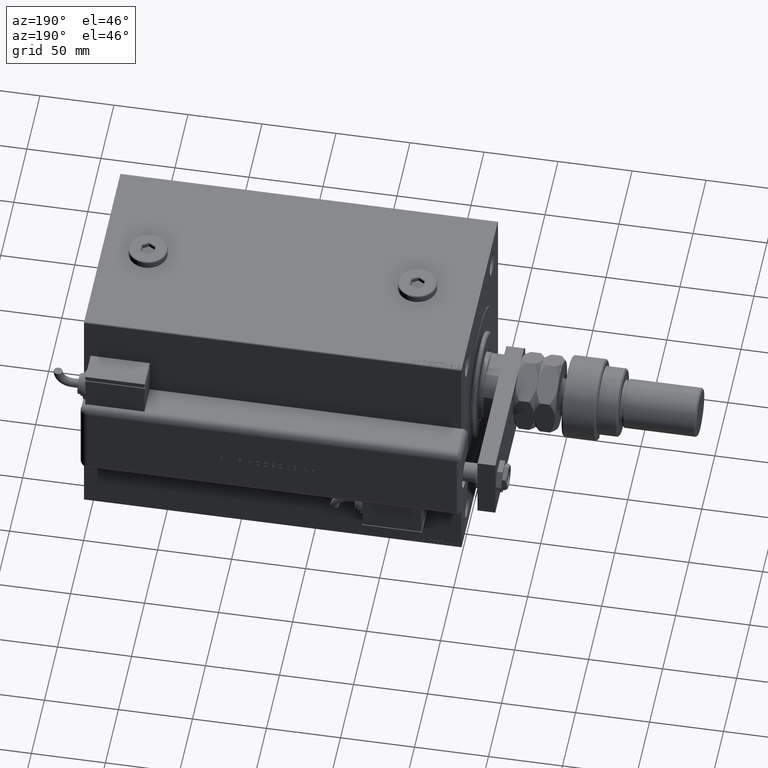
[diagram: clean part render]
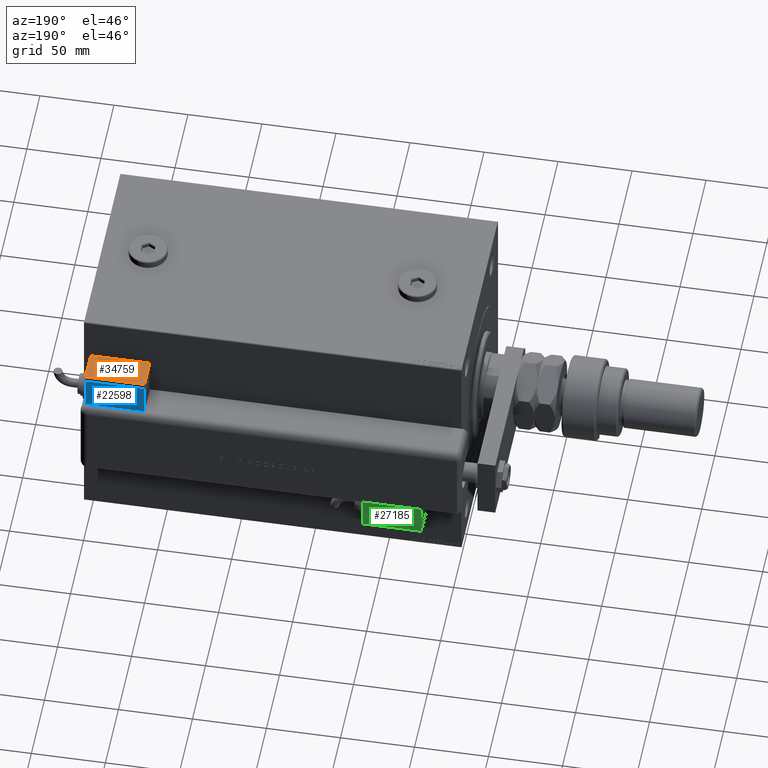
[diagram: same view with three faces highlighted in distinct colors, each labeled with its STEP entity id]
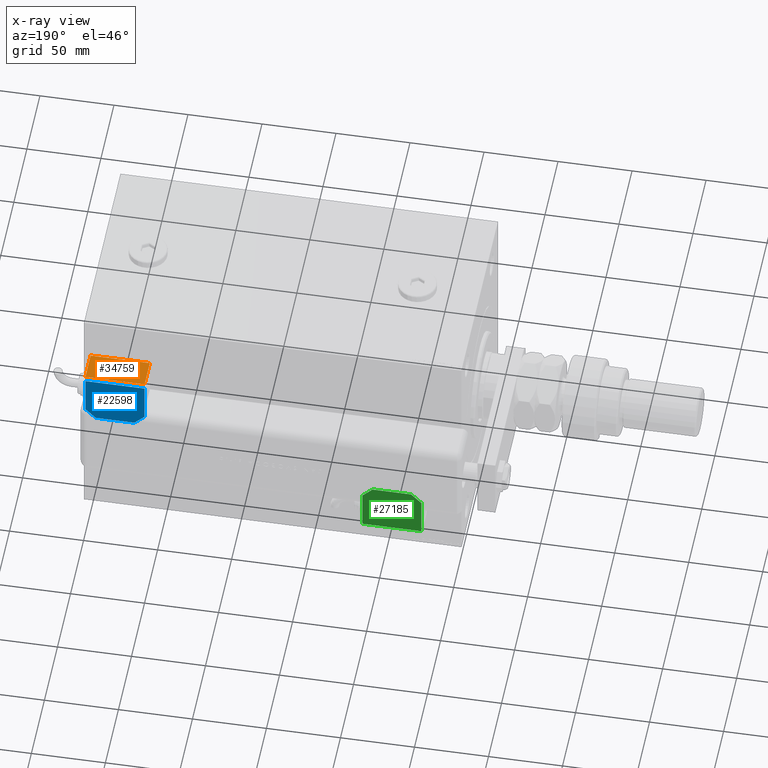
[diagram: x-ray of the same camera — body ghosted, the three highlighted faces saturated]
A machine part, auxiliary view with three faces highlighted in distinct colors.
The next image is the same camera in x-ray (body ghosted, the three faces saturated) — at least one of them is partly hidden behind the body in this view.
Their STEP definitions:

[orange] entity #34759 — the highlighted planar face has unit normal (-0, -0, -1).
#1926 = FACE_OUTER_BOUND ( 'NONE', #43758, .T. ) ;
#9948 = EDGE_CURVE ( 'NONE', #40380, #53001, #50478, .T. ) ;
#11420 = CARTESIAN_POINT ( 'NONE',  ( 20.00000000000005329, -17.49999999999996092, -9.999999999999998224 ) ) ;
#14231 = VERTEX_POINT ( 'NONE', #32868 ) ;
#14843 = VECTOR ( 'NONE', #53596, 1000.000000000000000 ) ;
#17223 = ORIENTED_EDGE ( 'NONE', *, *, #44770, .T. ) ;
#21776 = CARTESIAN_POINT ( 'NONE',  ( 0.000000000000000000, -17.49999999999996092, 0.000000000000000000 ) ) ;
#22006 = CARTESIAN_POINT ( 'NONE',  ( -19.99999999999994316, -17.49999999999996092, -9.999999999999998224 ) ) ;
#23265 = DIRECTION ( 'NONE',  ( -0.000000000000000000, -0.000000000000000000, -1.000000000000000000 ) ) ;
#25342 = VECTOR ( 'NONE', #39763, 1000.000000000000000 ) ;
#25346 = LINE ( 'NONE', #22006, #60466 ) ;
#27732 = CARTESIAN_POINT ( 'NONE',  ( 20.00000000000005329, -17.49999999999996092, 10.00000000000000000 ) ) ;
#28869 = ORIENTED_EDGE ( 'NONE', *, *, #9948, .T. ) ;
#29178 = LINE ( 'NONE', #34066, #14843 ) ;
#32614 = EDGE_CURVE ( 'NONE', #38119, #14231, #37255, .T. ) ;
#32868 = CARTESIAN_POINT ( 'NONE',  ( -19.99999999999994316, -17.49999999999996092, -9.999999999999998224 ) ) ;
#34066 = CARTESIAN_POINT ( 'NONE',  ( -19.99999999999994316, -17.49999999999996092, 10.00000000000000000 ) ) ;
#34443 = ORIENTED_EDGE ( 'NONE', *, *, #32614, .T. ) ;
#34759 = ADVANCED_FACE ( 'NONE', ( #1926 ), #60201, .F. ) ;
#37255 = LINE ( 'NONE', #37896, #52882 ) ;
#37896 = CARTESIAN_POINT ( 'NONE',  ( -19.99999999999994316, -17.49999999999996092, -9.999999999999998224 ) ) ;
#38119 = VERTEX_POINT ( 'NONE', #49750 ) ;
#39318 = EDGE_CURVE ( 'NONE', #14231, #40380, #25346, .T. ) ;
#39763 = DIRECTION ( 'NONE',  ( 0.000000000000000000, 0.000000000000000000, 1.000000000000000000 ) ) ;
#40380 = VERTEX_POINT ( 'NONE', #51298 ) ;
#41611 = DIRECTION ( 'NONE',  ( 0.000000000000000000, 1.000000000000000000, 0.000000000000000000 ) ) ;
#43758 = EDGE_LOOP ( 'NONE', ( #28869, #17223, #34443, #55944 ) ) ;
#44770 = EDGE_CURVE ( 'NONE', #53001, #38119, #29178, .T. ) ;
#45196 = DIRECTION ( 'NONE',  ( 1.000000000000000000, 0.000000000000000000, 0.000000000000000000 ) ) ;
#49750 = CARTESIAN_POINT ( 'NONE',  ( -19.99999999999994316, -17.49999999999996092, 10.00000000000000000 ) ) ;
#50478 = LINE ( 'NONE', #11420, #25342 ) ;
#51298 = CARTESIAN_POINT ( 'NONE',  ( 20.00000000000005329, -17.49999999999996092, -9.999999999999998224 ) ) ;
#52882 = VECTOR ( 'NONE', #23265, 1000.000000000000000 ) ;
#52976 = AXIS2_PLACEMENT_3D ( 'NONE', #21776, #41611, #61494 ) ;
#53001 = VERTEX_POINT ( 'NONE', #27732 ) ;
#53596 = DIRECTION ( 'NONE',  ( -1.000000000000000000, -0.000000000000000000, -0.000000000000000000 ) ) ;
#55944 = ORIENTED_EDGE ( 'NONE', *, *, #39318, .T. ) ;
#60201 = PLANE ( 'NONE',  #52976 ) ;
#60466 = VECTOR ( 'NONE', #45196, 1000.000000000000000 ) ;
#61494 = DIRECTION ( 'NONE',  ( 0.000000000000000000, -0.000000000000000000, 1.000000000000000000 ) ) ;

[blue] entity #22598 — the highlighted planar face has unit normal (-0, -1, 0).
#1311 = VECTOR ( 'NONE', #8456, 1000.000000000000000 ) ;
#1906 = FACE_OUTER_BOUND ( 'NONE', #44971, .T. ) ;
#2420 = LINE ( 'NONE', #57093, #58890 ) ;
#4916 = LINE ( 'NONE', #24749, #16224 ) ;
#5717 = ORIENTED_EDGE ( 'NONE', *, *, #8402, .F. ) ;
#5822 = VECTOR ( 'NONE', #45651, 1000.000000000000000 ) ;
#7262 = DIRECTION ( 'NONE',  ( -0.7071067811865356934, -0.7071067811865593411, -0.000000000000000000 ) ) ;
#7511 = CARTESIAN_POINT ( 'NONE',  ( -19.99999999999994316, -13.49999999999996092, -10.00000000000000000 ) ) ;
#8158 = DIRECTION ( 'NONE',  ( -1.284980352575421081E-16, -1.000000000000000000, -0.000000000000000000 ) ) ;
#8402 = EDGE_CURVE ( 'NONE', #51602, #45977, #37124, .T. ) ;
#8456 = DIRECTION ( 'NONE',  ( -1.284980352575421081E-16, -1.000000000000000000, -0.000000000000000000 ) ) ;
#9463 = ORIENTED_EDGE ( 'NONE', *, *, #57412, .F. ) ;
#9490 = VECTOR ( 'NONE', #7262, 1000.000000000000000 ) ;
#10695 = CARTESIAN_POINT ( 'NONE',  ( 0.000000000000000000, 0.000000000000000000, -10.00000000000000000 ) ) ;
#11516 = ORIENTED_EDGE ( 'NONE', *, *, #53792, .F. ) ;
#13561 = CARTESIAN_POINT ( 'NONE',  ( 0.000000000000000000, 20.50000000000009592, -10.00000000000000000 ) ) ;
#14424 = ORIENTED_EDGE ( 'NONE', *, *, #57718, .F. ) ;
#15269 = CARTESIAN_POINT ( 'NONE',  ( -19.99999999999994316, -13.49999999999996092, -10.00000000000000000 ) ) ;
#15395 = VERTEX_POINT ( 'NONE', #23019 ) ;
#16224 = VECTOR ( 'NONE', #55011, 1000.000000000000000 ) ;
#16231 = PLANE ( 'NONE',  #43238 ) ;
#17388 = ORIENTED_EDGE ( 'NONE', *, *, #41905, .F. ) ;
#19817 = VERTEX_POINT ( 'NONE', #33545 ) ;
#20299 = CARTESIAN_POINT ( 'NONE',  ( 20.00000000000005329, -13.49999999999996092, -10.00000000000000000 ) ) ;
#22598 = ADVANCED_FACE ( 'NONE', ( #1906 ), #16231, .F. ) ;
#23019 = CARTESIAN_POINT ( 'NONE',  ( 20.00000000000005684, 13.50000000000003730, -10.00000000000000000 ) ) ;
#23342 = LINE ( 'NONE', #13561, #58475 ) ;
#23823 = ORIENTED_EDGE ( 'NONE', *, *, #44685, .T. ) ;
#24749 = CARTESIAN_POINT ( 'NONE',  ( -19.99999999999994316, -13.49999999999996092, -10.00000000000000000 ) ) ;
#28618 = CARTESIAN_POINT ( 'NONE',  ( -19.99999999999994316, -13.49999999999996092, -10.00000000000000000 ) ) ;
#29443 = VECTOR ( 'NONE', #8158, 1000.000000000000000 ) ;
#29577 = VERTEX_POINT ( 'NONE', #59840 ) ;
#30673 = ORIENTED_EDGE ( 'NONE', *, *, #45428, .F. ) ;
#33545 = CARTESIAN_POINT ( 'NONE',  ( -12.99999999999994138, 20.50000000000009592, -10.00000000000000000 ) ) ;
#37124 = LINE ( 'NONE', #7511, #29443 ) ;
#37909 = CARTESIAN_POINT ( 'NONE',  ( -19.99999999999993960, 2.569960705150834076E-15, -9.999999999999996447 ) ) ;
#41489 = CARTESIAN_POINT ( 'NONE',  ( -19.99999999999993960, 13.49999999999986500, -10.00000000000000000 ) ) ;
#41785 = DIRECTION ( 'NONE',  ( -0.7071067811865479058, 0.7071067811865470176, -0.000000000000000000 ) ) ;
#41905 = EDGE_CURVE ( 'NONE', #19817, #51602, #56420, .T. ) ;
#43238 = AXIS2_PLACEMENT_3D ( 'NONE', #10695, #51688, #45518 ) ;
#43745 = VERTEX_POINT ( 'NONE', #53502 ) ;
#44685 = EDGE_CURVE ( 'NONE', #19817, #29577, #23342, .T. ) ;
#44971 = EDGE_LOOP ( 'NONE', ( #17388, #23823, #14424, #11516, #9463, #30673, #5717 ) ) ;
#45428 = EDGE_CURVE ( 'NONE', #45977, #57959, #53355, .T. ) ;
#45518 = DIRECTION ( 'NONE',  ( 1.000000000000000000, 0.000000000000000000, -0.000000000000000000 ) ) ;
#45651 = DIRECTION ( 'NONE',  ( 1.284980352575412699E-16, 1.000000000000000000, 0.000000000000000000 ) ) ;
#45977 = VERTEX_POINT ( 'NONE', #37909 ) ;
#47746 = DIRECTION ( 'NONE',  ( 1.000000000000000000, 0.000000000000000000, 0.000000000000000000 ) ) ;
#51525 = CARTESIAN_POINT ( 'NONE',  ( -19.99999999999993960, 13.49999999999986500, -10.00000000000000000 ) ) ;
#51602 = VERTEX_POINT ( 'NONE', #41489 ) ;
#51688 = DIRECTION ( 'NONE',  ( 0.000000000000000000, 0.000000000000000000, 1.000000000000000000 ) ) ;
#53355 = LINE ( 'NONE', #28618, #1311 ) ;
#53502 = CARTESIAN_POINT ( 'NONE',  ( 20.00000000000005329, -13.49999999999996092, -10.00000000000000000 ) ) ;
#53792 = EDGE_CURVE ( 'NONE', #43745, #15395, #54487, .T. ) ;
#54487 = LINE ( 'NONE', #20299, #5822 ) ;
#55011 = DIRECTION ( 'NONE',  ( 1.000000000000000000, 0.000000000000000000, 0.000000000000000000 ) ) ;
#56420 = LINE ( 'NONE', #51525, #9490 ) ;
#57093 = CARTESIAN_POINT ( 'NONE',  ( 9.999999999999984013, 23.50000000000009592, -10.00000000000000000 ) ) ;
#57412 = EDGE_CURVE ( 'NONE', #57959, #43745, #4916, .T. ) ;
#57718 = EDGE_CURVE ( 'NONE', #15395, #29577, #2420, .T. ) ;
#57959 = VERTEX_POINT ( 'NONE', #15269 ) ;
#58475 = VECTOR ( 'NONE', #47746, 1000.000000000000000 ) ;
#58890 = VECTOR ( 'NONE', #41785, 1000.000000000000114 ) ;
#59840 = CARTESIAN_POINT ( 'NONE',  ( 12.99999999999999112, 20.50000000000009592, -10.00000000000000000 ) ) ;

[green] entity #27185 — the highlighted planar face has unit normal (-0, 1, -0).
#2224 = VERTEX_POINT ( 'NONE', #10953 ) ;
#3398 = ORIENTED_EDGE ( 'NONE', *, *, #11316, .T. ) ;
#3897 = VECTOR ( 'NONE', #4830, 1000.000000000000000 ) ;
#4830 = DIRECTION ( 'NONE',  ( -1.000000000000000000, 0.000000000000000000, 0.000000000000000000 ) ) ;
#6165 = LINE ( 'NONE', #61823, #30894 ) ;
#7444 = LINE ( 'NONE', #37695, #3897 ) ;
#8059 = LINE ( 'NONE', #22722, #26667 ) ;
#9141 = AXIS2_PLACEMENT_3D ( 'NONE', #38749, #42987, #53723 ) ;
#9868 = VERTEX_POINT ( 'NONE', #42405 ) ;
#10839 = VECTOR ( 'NONE', #55885, 1000.000000000000114 ) ;
#10909 = VERTEX_POINT ( 'NONE', #57326 ) ;
#10953 = CARTESIAN_POINT ( 'NONE',  ( 20.00000000000005684, 13.50000000000003730, 10.00000000000000000 ) ) ;
#11316 = EDGE_CURVE ( 'NONE', #2224, #24317, #59513, .T. ) ;
#13538 = EDGE_CURVE ( 'NONE', #9868, #10909, #55923, .T. ) ;
#14435 = ORIENTED_EDGE ( 'NONE', *, *, #48728, .T. ) ;
#18242 = EDGE_CURVE ( 'NONE', #32119, #2224, #30800, .T. ) ;
#19038 = LINE ( 'NONE', #38872, #51340 ) ;
#20628 = ORIENTED_EDGE ( 'NONE', *, *, #26078, .T. ) ;
#21081 = ORIENTED_EDGE ( 'NONE', *, *, #18242, .T. ) ;
#21622 = CARTESIAN_POINT ( 'NONE',  ( -12.99999999999994138, 20.50000000000009592, 10.00000000000000000 ) ) ;
#22038 = EDGE_LOOP ( 'NONE', ( #3398, #20628, #27390, #27485, #31696, #14435, #21081 ) ) ;
#22666 = CARTESIAN_POINT ( 'NONE',  ( -19.99999999999993960, 13.49999999999986500, 10.00000000000000000 ) ) ;
#22722 = CARTESIAN_POINT ( 'NONE',  ( -19.99999999999994316, -13.49999999999996092, 10.00000000000000000 ) ) ;
#24317 = VERTEX_POINT ( 'NONE', #48344 ) ;
#25327 = DIRECTION ( 'NONE',  ( -1.284980352575421081E-16, -1.000000000000000000, -0.000000000000000000 ) ) ;
#26078 = EDGE_CURVE ( 'NONE', #24317, #26653, #7444, .T. ) ;
#26616 = DIRECTION ( 'NONE',  ( -1.284980352575421081E-16, -1.000000000000000000, -0.000000000000000000 ) ) ;
#26653 = VERTEX_POINT ( 'NONE', #21622 ) ;
#26667 = VECTOR ( 'NONE', #26616, 1000.000000000000000 ) ;
#27185 = ADVANCED_FACE ( 'NONE', ( #64176 ), #28023, .T. ) ;
#27390 = ORIENTED_EDGE ( 'NONE', *, *, #60054, .T. ) ;
#27485 = ORIENTED_EDGE ( 'NONE', *, *, #58141, .T. ) ;
#28023 = PLANE ( 'NONE',  #9141 ) ;
#30800 = LINE ( 'NONE', #46089, #43176 ) ;
#30894 = VECTOR ( 'NONE', #61179, 1000.000000000000000 ) ;
#31696 = ORIENTED_EDGE ( 'NONE', *, *, #13538, .T. ) ;
#32119 = VERTEX_POINT ( 'NONE', #56238 ) ;
#36016 = CARTESIAN_POINT ( 'NONE',  ( 9.999999999999984013, 23.50000000000009592, 10.00000000000000000 ) ) ;
#37695 = CARTESIAN_POINT ( 'NONE',  ( -10.00000000000004086, 20.50000000000009592, 10.00000000000000000 ) ) ;
#38749 = CARTESIAN_POINT ( 'NONE',  ( 0.000000000000000000, 0.000000000000000000, 10.00000000000000000 ) ) ;
#38872 = CARTESIAN_POINT ( 'NONE',  ( -19.99999999999994316, -13.49999999999996092, 10.00000000000000000 ) ) ;
#41210 = DIRECTION ( 'NONE',  ( 1.284980352575412699E-16, 1.000000000000000000, 0.000000000000000000 ) ) ;
#42405 = CARTESIAN_POINT ( 'NONE',  ( -19.99999999999993960, 2.569960705150834076E-15, 10.00000000000000000 ) ) ;
#42987 = DIRECTION ( 'NONE',  ( 0.000000000000000000, 0.000000000000000000, 1.000000000000000000 ) ) ;
#43176 = VECTOR ( 'NONE', #41210, 1000.000000000000000 ) ;
#46089 = CARTESIAN_POINT ( 'NONE',  ( 20.00000000000005329, -13.49999999999996092, 10.00000000000000000 ) ) ;
#46136 = CARTESIAN_POINT ( 'NONE',  ( -19.99999999999994316, -13.49999999999996092, 10.00000000000000000 ) ) ;
#48344 = CARTESIAN_POINT ( 'NONE',  ( 12.99999999999999112, 20.50000000000009592, 10.00000000000000000 ) ) ;
#48728 = EDGE_CURVE ( 'NONE', #10909, #32119, #19038, .T. ) ;
#51340 = VECTOR ( 'NONE', #58750, 1000.000000000000000 ) ;
#51354 = VECTOR ( 'NONE', #25327, 1000.000000000000000 ) ;
#53723 = DIRECTION ( 'NONE',  ( 1.000000000000000000, 0.000000000000000000, -0.000000000000000000 ) ) ;
#55885 = DIRECTION ( 'NONE',  ( -0.7071067811865479058, 0.7071067811865470176, -0.000000000000000000 ) ) ;
#55923 = LINE ( 'NONE', #46136, #51354 ) ;
#56238 = CARTESIAN_POINT ( 'NONE',  ( 20.00000000000005329, -13.49999999999996092, 10.00000000000000000 ) ) ;
#56616 = VERTEX_POINT ( 'NONE', #22666 ) ;
#57326 = CARTESIAN_POINT ( 'NONE',  ( -19.99999999999994316, -13.49999999999996092, 10.00000000000000000 ) ) ;
#58141 = EDGE_CURVE ( 'NONE', #56616, #9868, #8059, .T. ) ;
#58750 = DIRECTION ( 'NONE',  ( 1.000000000000000000, 0.000000000000000000, 0.000000000000000000 ) ) ;
#59513 = LINE ( 'NONE', #36016, #10839 ) ;
#60054 = EDGE_CURVE ( 'NONE', #26653, #56616, #6165, .T. ) ;
#61179 = DIRECTION ( 'NONE',  ( -0.7071067811865356934, -0.7071067811865593411, -0.000000000000000000 ) ) ;
#61823 = CARTESIAN_POINT ( 'NONE',  ( -19.99999999999993960, 13.49999999999986500, 10.00000000000000000 ) ) ;
#64176 = FACE_OUTER_BOUND ( 'NONE', #22038, .T. ) ;